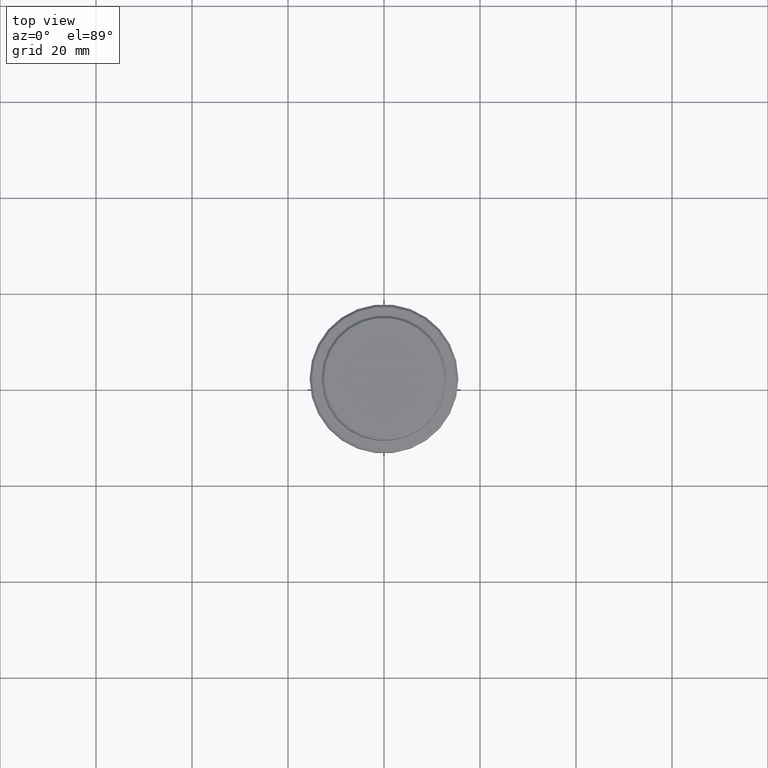
[diagram: clean part render]
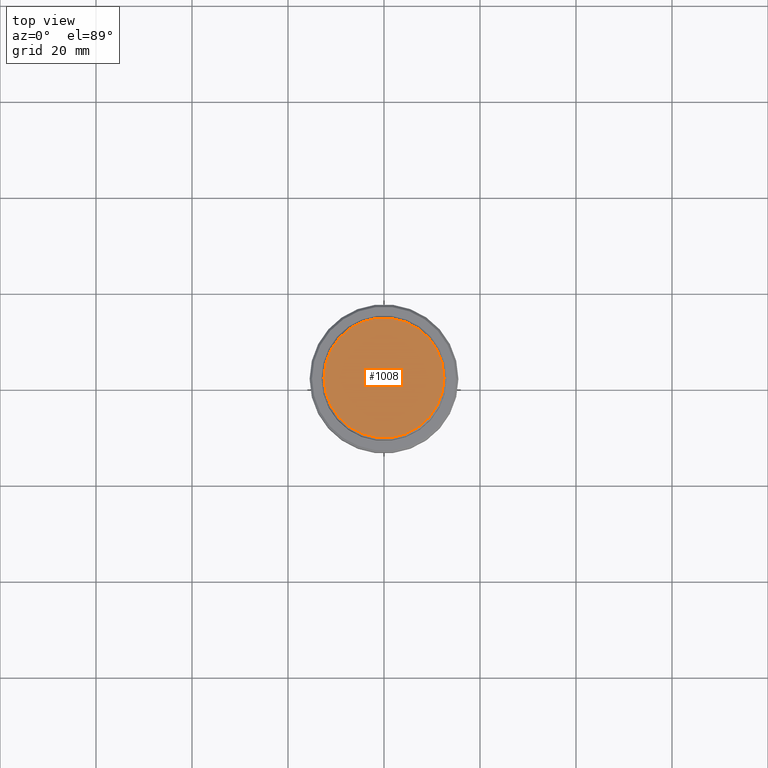
[diagram: same view with one face highlighted and labeled with its STEP entity id]
A machine part, top view. The second image highlights one B-rep face of the part: STEP entity #1008.
In plain terms, the highlighted planar face has unit normal (0, -0, 1).
Its self-contained STEP definition (entity closure, byte-faithful):
#64 = ORIENTED_EDGE ( 'NONE', *, *, #673, .T. ) ;
#73 = ORIENTED_EDGE ( 'NONE', *, *, #989, .T. ) ;
#173 = AXIS2_PLACEMENT_3D ( 'NONE', #210, #624, #1074 ) ;
#210 = CARTESIAN_POINT ( 'NONE',  ( 0.000000000000000000, 0.000000000000000000, 0.000000000000000000 ) ) ;
#250 = CARTESIAN_POINT ( 'NONE',  ( 0.000000000000000000, 0.000000000000000000, 0.000000000000000000 ) ) ;
#327 = EDGE_LOOP ( 'NONE', ( #73, #64 ) ) ;
#335 = AXIS2_PLACEMENT_3D ( 'NONE', #250, #1370, #684 ) ;
#608 = DIRECTION ( 'NONE',  ( -0.000000000000000000, -0.000000000000000000, 1.000000000000000000 ) ) ;
#624 = DIRECTION ( 'NONE',  ( -0.000000000000000000, -0.000000000000000000, 1.000000000000000000 ) ) ;
#673 = EDGE_CURVE ( 'NONE', #1201, #1001, #1216, .T. ) ;
#684 = DIRECTION ( 'NONE',  ( 1.000000000000000000, 0.000000000000000000, 0.000000000000000000 ) ) ;
#908 = CARTESIAN_POINT ( 'NONE',  ( -12.50000000000001243, 0.000000000000000000, 0.000000000000000000 ) ) ;
#933 = CARTESIAN_POINT ( 'NONE',  ( 0.000000000000000000, 0.000000000000000000, 0.000000000000000000 ) ) ;
#989 = EDGE_CURVE ( 'NONE', #1001, #1201, #1183, .T. ) ;
#1001 = VERTEX_POINT ( 'NONE', #908 ) ;
#1008 = ADVANCED_FACE ( 'NONE', ( #1252 ), #1338, .T. ) ;
#1028 = DIRECTION ( 'NONE',  ( 1.000000000000000000, 0.000000000000000000, 0.000000000000000000 ) ) ;
#1074 = DIRECTION ( 'NONE',  ( 1.000000000000000000, 0.000000000000000000, 0.000000000000000000 ) ) ;
#1183 = CIRCLE ( 'NONE', #1294, 12.50000000000001243 ) ;
#1201 = VERTEX_POINT ( 'NONE', #1207 ) ;
#1207 = CARTESIAN_POINT ( 'NONE',  ( 12.50000000000001243, 1.561424668912876097E-15, 0.000000000000000000 ) ) ;
#1216 = CIRCLE ( 'NONE', #173, 12.50000000000001243 ) ;
#1252 = FACE_OUTER_BOUND ( 'NONE', #327, .T. ) ;
#1294 = AXIS2_PLACEMENT_3D ( 'NONE', #933, #608, #1028 ) ;
#1338 = PLANE ( 'NONE',  #335 ) ;
#1370 = DIRECTION ( 'NONE',  ( 0.000000000000000000, -0.000000000000000000, 1.000000000000000000 ) ) ;